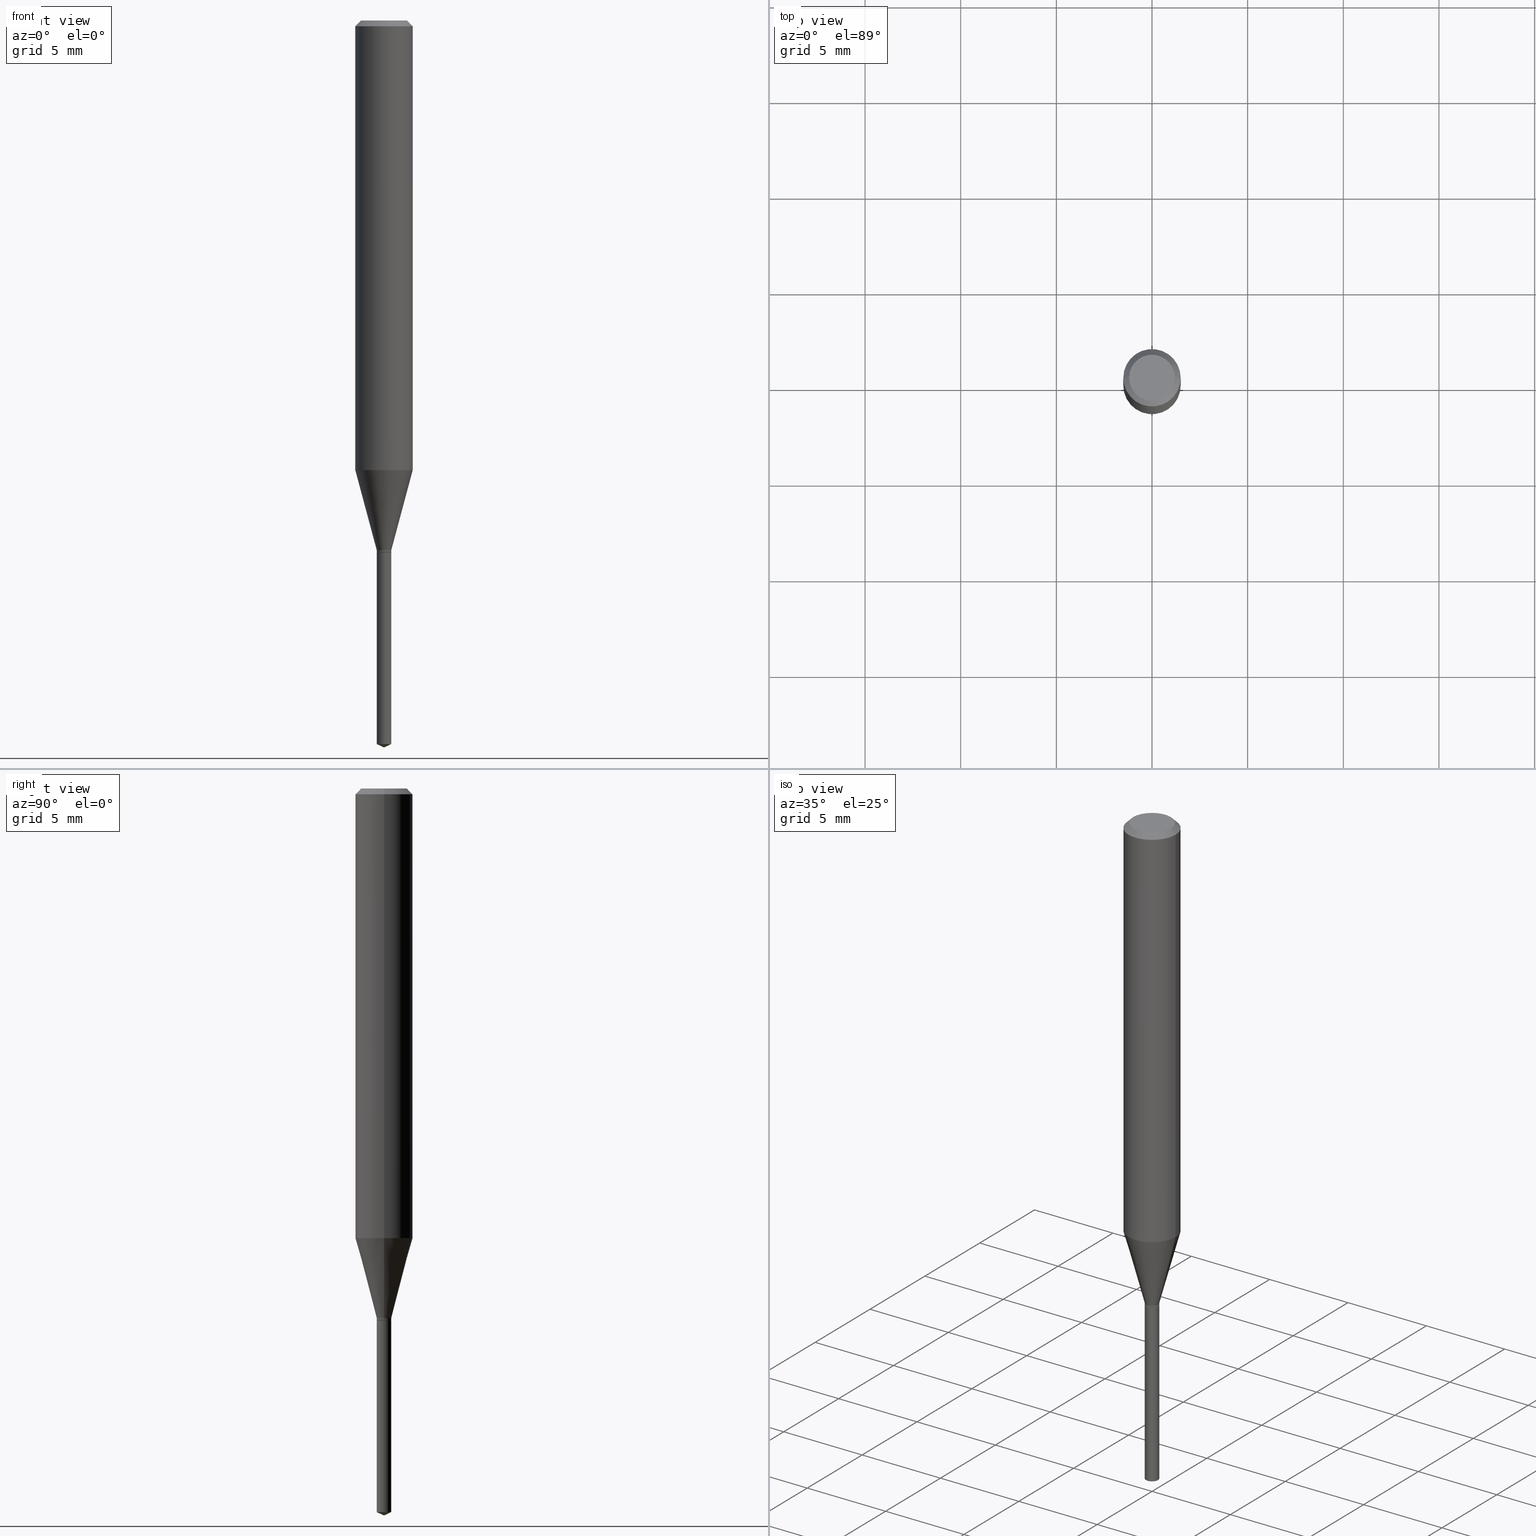
[diagram: canonical four-view strip — front | top / right | iso, engineering-drawing reading convention]
A machine part, canonical four-view strip (front | top / right | iso — engineering-drawing reading convention). The complete STEP part file that produces these views, byte-faithful:
ISO-10303-21;
HEADER;
FILE_DESCRIPTION (( 'STEP AP203' ),
    '1' );
FILE_NAME ('08118.STEP',
    '2024-04-24T12:05:46',
    ( '' ),
    ( '' ),
    'SwSTEP 2.0',
    'SolidWorks 2023',
    '' );
FILE_SCHEMA (( 'CONFIG_CONTROL_DESIGN' ));
ENDSEC;

DATA;
#1 = DIRECTION ( 'NONE',  ( 1.000000000000000000, -6.982962677686266711E-15, 0.000000000000000000 ) ) ;
#2 = ORIENTED_EDGE ( 'NONE', *, *, #183, .T. ) ;
#3 = APPROVAL_ROLE ( '' ) ;
#4 = CARTESIAN_POINT ( 'NONE',  ( 0.01494999999999994424, -3.910109951370437521E-15, -1.089999999999999858 ) ) ;
#5 = SHAPE_DEFINITION_REPRESENTATION ( #214, #108 ) ;
#6 = CIRCLE ( 'NONE', #334, 0.05904999999999999832 ) ;
#7 = AXIS2_PLACEMENT_3D ( 'NONE', #10, #202, #354 ) ;
#8 = APPROVAL_ROLE ( '' ) ;
#9 = ORIENTED_EDGE ( 'NONE', *, *, #475, .F. ) ;
#10 = CARTESIAN_POINT ( 'NONE',  ( 2.676565608369631794E-29, -3.821426325363822773E-15, -1.094499999999999806 ) ) ;
#11 = EDGE_LOOP ( 'NONE', ( #118, #412 ) ) ;
#12 = FACE_OUTER_BOUND ( 'NONE', #224, .T. ) ;
#13 = CARTESIAN_POINT ( 'NONE',  ( -0.05905000000000011628, -2.811499162287049151E-15, -0.9254165593862120343 ) ) ;
#14 = AXIS2_PLACEMENT_3D ( 'NONE', #360, #467, #46 ) ;
#15 = CC_DESIGN_APPROVAL ( #299, ( #155 ) ) ;
#16 = DIRECTION ( 'NONE',  ( -2.445468806185136597E-29, 3.491481338843145583E-15, 1.000000000000000000 ) ) ;
#17 = DIRECTION ( 'NONE',  ( -6.982962677686267499E-15, -1.000000000000000000, 3.520397390770298070E-15 ) ) ;
#18 = CARTESIAN_POINT ( 'NONE',  ( -9.261931828548885815E-28, 1.322367415117763772E-13, 37.87397874015748300 ) ) ;
#19 = CYLINDRICAL_SURFACE ( 'NONE', #134, 0.05905000000000006077 ) ;
#20 = VECTOR ( 'NONE', #221, 39.37007874015748854 ) ;
#21 = PLANE ( 'NONE',  #418 ) ;
#22 = CARTESIAN_POINT ( 'NONE',  ( -9.261931828548885815E-28, 1.322367415117763772E-13, 37.87397874015748300 ) ) ;
#23 = CARTESIAN_POINT ( 'NONE',  ( -0.01494999999999994424, 1.062261389961345816E-16, -7.353807959931056667E-31 ) ) ;
#24 = APPROVAL ( #198, 'UNSPECIFIED' ) ;
#25 = CARTESIAN_POINT ( 'NONE',  ( 2.665560998741798263E-29, -3.805714659339028452E-15, -1.089999999999999858 ) ) ;
#26 = VECTOR ( 'NONE', #403, 39.37007874015748143 ) ;
#27 = CARTESIAN_POINT ( 'NONE',  ( 2.888098660104663766E-31, -4.123439461173779647E-17, -0.01181000000000007044 ) ) ;
#28 = EDGE_CURVE ( 'NONE', #465, #241, #362, .T. ) ;
#29 = ORIENTED_EDGE ( 'NONE', *, *, #366, .F. ) ;
#30 = CARTESIAN_POINT ( 'NONE',  ( 2.263077328706156631E-29, -3.231074647753389433E-15, -0.9254165593862120343 ) ) ;
#31 = PERSON_AND_ORGANIZATION ( #258, #462 ) ;
#32 = AXIS2_PLACEMENT_3D ( 'NONE', #220, #307, #303 ) ;
#33 = AXIS2_PLACEMENT_3D ( 'NONE', #71, #230, #271 ) ;
#34 = CARTESIAN_POINT ( 'NONE',  ( 3.658671642415649744E-29, -5.223597202677443246E-15, -1.496099999999999985 ) ) ;
#35 = ORIENTED_EDGE ( 'NONE', *, *, #67, .T. ) ;
#36 = PERSON_AND_ORGANIZATION_ROLE ( 'design_owner' ) ;
#37 = VERTEX_POINT ( 'NONE', #474 ) ;
#38 = CC_DESIGN_DATE_AND_TIME_ASSIGNMENT ( #110, #73, ( #262 ) ) ;
#39 = COORDINATED_UNIVERSAL_TIME_OFFSET ( 5, 0, .BEHIND. ) ;
#40 = MANIFOLD_SOLID_BREP ( 'Body-Move/Copy2[2]', #44 ) ;
#41 = VERTEX_POINT ( 'NONE', #13 ) ;
#42 = VERTEX_POINT ( 'NONE', #398 ) ;
#43 = APPLICATION_PROTOCOL_DEFINITION ( 'international standard', 'config_control_design', 1994, #162 ) ;
#44 = CLOSED_SHELL ( 'NONE', ( #342, #244, #236, #227, #392, #89, #257, #157, #316, #248, #103, #301 ) ) ;
#45 = ORIENTED_EDGE ( 'NONE', *, *, #76, .T. ) ;
#46 = DIRECTION ( 'NONE',  ( -6.982962677686266711E-15, -1.000000000000000000, 0.000000000000000000 ) ) ;
#47 = PRODUCT_DEFINITION ( 'UNKNOWN', '', #155, #99 ) ;
#48 = MANIFOLD_SOLID_BREP ( 'Body-Move/Copy2[1]', #374 ) ;
#49 = ORIENTED_EDGE ( 'NONE', *, *, #290, .F. ) ;
#50 = ORIENTED_EDGE ( 'NONE', *, *, #295, .F. ) ;
#51 = ORIENTED_EDGE ( 'NONE', *, *, #351, .T. ) ;
#52 = ORIENTED_EDGE ( 'NONE', *, *, #443, .T. ) ;
#53 = CONICAL_SURFACE ( 'NONE', #146, 0.01445000000000000104, 0.7853981633973586840 ) ;
#54 = EDGE_LOOP ( 'NONE', ( #136, #186, #318, #77 ) ) ;
#55 = EDGE_CURVE ( 'NONE', #60, #322, #324, .T. ) ;
#56 = DIRECTION ( 'NONE',  ( 2.438088387897960049E-29, -3.491481338843145188E-15, -1.000000000000000000 ) ) ;
#57 = DIRECTION ( 'NONE',  ( 1.000000000000000000, -6.982962677686266711E-15, 4.876176775795935793E-29 ) ) ;
#58 = ORIENTED_EDGE ( 'NONE', *, *, #426, .T. ) ;
#59 = ORIENTED_EDGE ( 'NONE', *, *, #355, .F. ) ;
#60 = VERTEX_POINT ( 'NONE', #361 ) ;
#61 = VECTOR ( 'NONE', #175, 39.37007874015748143 ) ;
#62 = CARTESIAN_POINT ( 'NONE',  ( 0.000000000000000000, 0.000000000000000000, 0.000000000000000000 ) ) ;
#63 = CARTESIAN_POINT ( 'NONE',  ( -0.01494999999999994424, -3.699488520342893341E-15, -1.089999999999999858 ) ) ;
#64 = AXIS2_PLACEMENT_3D ( 'NONE', #151, #372, #484 ) ;
#65 = FACE_OUTER_BOUND ( 'NONE', #377, .T. ) ;
#66 = DIRECTION ( 'NONE',  ( -6.982962677686266711E-15, -1.000000000000000000, 0.000000000000000000 ) ) ;
#67 = EDGE_CURVE ( 'NONE', #465, #348, #208, .T. ) ;
#68 = ORIENTED_EDGE ( 'NONE', *, *, #255, .T. ) ;
#69 = DIRECTION ( 'NONE',  ( -2.445468806185136597E-29, 3.491481338843145583E-15, 1.000000000000000000 ) ) ;
#70 = ORIENTED_EDGE ( 'NONE', *, *, #76, .F. ) ;
#71 = CARTESIAN_POINT ( 'NONE',  ( 0.000000000000000000, 0.000000000000000000, 0.000000000000000000 ) ) ;
#72 = AXIS2_PLACEMENT_3D ( 'NONE', #289, #445, #133 ) ;
#73 = DATE_TIME_ROLE ( 'classification_date' ) ;
#74 = CIRCLE ( 'NONE', #293, 0.04724000000000000421 ) ;
#75 = VERTEX_POINT ( 'NONE', #472 ) ;
#76 = EDGE_CURVE ( 'NONE', #322, #237, #466, .T. ) ;
#77 = ORIENTED_EDGE ( 'NONE', *, *, #160, .F. ) ;
#78 = COORDINATED_UNIVERSAL_TIME_OFFSET ( 5, 0, .BEHIND. ) ;
#79 = VERTEX_POINT ( 'NONE', #473 ) ;
#80 = DATE_AND_TIME ( #279, #147 ) ;
#81 = EDGE_CURVE ( 'NONE', #453, #75, #6, .T. ) ;
#82 = AXIS2_PLACEMENT_3D ( 'NONE', #145, #305, #66 ) ;
#83 = EDGE_LOOP ( 'NONE', ( #448, #51, #381 ) ) ;
#84 = AXIS2_PLACEMENT_3D ( 'NONE', #30, #184, #1 ) ;
#85 = DIRECTION ( 'NONE',  ( 1.000000000000000000, -6.982962677686266711E-15, 4.876185090822587894E-29 ) ) ;
#86 = ORIENTED_EDGE ( 'NONE', *, *, #443, .F. ) ;
#87 = DIRECTION ( 'NONE',  ( 1.000000000000000000, -6.982962677686266711E-15, 4.876176775795935793E-29 ) ) ;
#88 = CARTESIAN_POINT ( 'NONE',  ( 1.062261389961617356E-16, 0.01494999999999617815, -1.094499999999999806 ) ) ;
#89 = ADVANCED_FACE ( 'NONE', ( #252 ), #211, .T. ) ;
#90 = PLANE ( 'NONE',  #402 ) ;
#91 = LINE ( 'NONE', #88, #178 ) ;
#92 = AXIS2_PLACEMENT_3D ( 'NONE', #25, #482, #265 ) ;
#93 = ORIENTED_EDGE ( 'NONE', *, *, #195, .T. ) ;
#94 = CARTESIAN_POINT ( 'NONE',  ( -0.05904999999999999832, 3.711095515056362547E-16, -0.01181000000000007044 ) ) ;
#95 = FACE_OUTER_BOUND ( 'NONE', #296, .T. ) ;
#96 = DIRECTION ( 'NONE',  ( 1.000000000000000000, -6.982962677686271444E-15, 0.000000000000000000 ) ) ;
#97 = PRODUCT_RELATED_PRODUCT_CATEGORY ( 'detail', '', ( #182 ) ) ;
#98 = CARTESIAN_POINT ( 'NONE',  ( 1.062261389961713869E-16, 0.01494999999999480425, -1.489128700510583103 ) ) ;
#99 = DESIGN_CONTEXT ( 'detailed design', #162, 'design' ) ;
#100 = CIRCLE ( 'NONE', #461, 0.01494999999999999975 ) ;
#101 = DIRECTION ( 'NONE',  ( 1.000000000000000000, -6.982962677686271444E-15, 0.000000000000000000 ) ) ;
#102 = UNCERTAINTY_MEASURE_WITH_UNIT (LENGTH_MEASURE( 1.000000000000000082E-05 ), #338, 'distance_accuracy_value', 'NONE');
#103 = ADVANCED_FACE ( 'NONE', ( #249 ), #21, .F. ) ;
#104 = ADVANCED_FACE ( 'NONE', ( #357 ), #197, .T. ) ;
#105 = FACE_OUTER_BOUND ( 'NONE', #125, .T. ) ;
#106 = ORIENTED_EDGE ( 'NONE', *, *, #67, .F. ) ;
#107 = ORIENTED_EDGE ( 'NONE', *, *, #414, .T. ) ;
#108 = ADVANCED_BREP_SHAPE_REPRESENTATION ( '08118', ( #48, #40, #33 ), #243 ) ;
#109 = ORIENTED_EDGE ( 'NONE', *, *, #195, .F. ) ;
#110 = DATE_AND_TIME ( #456, #411 ) ;
#111 = ADVANCED_FACE ( 'NONE', ( #95 ), #131, .T. ) ;
#112 = EDGE_LOOP ( 'NONE', ( #191, #304, #50 ) ) ;
#113 = ORIENTED_EDGE ( 'NONE', *, *, #55, .T. ) ;
#114 = AXIS2_PLACEMENT_3D ( 'NONE', #217, #294, #477 ) ;
#115 = APPROVAL_STATUS ( 'not_yet_approved' ) ;
#116 = AXIS2_PLACEMENT_3D ( 'NONE', #285, #432, #87 ) ;
#117 = LOCAL_TIME ( 8, 5, 46.00000000000000000, #159 ) ;
#118 = ORIENTED_EDGE ( 'NONE', *, *, #168, .T. ) ;
#119 = PERSON_AND_ORGANIZATION ( #258, #462 ) ;
#120 = ADVANCED_FACE ( 'NONE', ( #353 ), #287, .T. ) ;
#121 = ORIENTED_EDGE ( 'NONE', *, *, #426, .F. ) ;
#122 = DATE_AND_TIME ( #240, #209 ) ;
#123 = EDGE_LOOP ( 'NONE', ( #459, #107, #431, #278 ) ) ;
#124 = AXIS2_PLACEMENT_3D ( 'NONE', #18, #325, #17 ) ;
#125 = EDGE_LOOP ( 'NONE', ( #275, #306, #113, #424 ) ) ;
#126 = CIRCLE ( 'NONE', #207, 0.01494999999999994771 ) ;
#127 = CC_DESIGN_SECURITY_CLASSIFICATION ( #262, ( #155 ) ) ;
#128 = DIRECTION ( 'NONE',  ( 1.000000000000000000, -6.982962677686271444E-15, 0.000000000000000000 ) ) ;
#129 = ORIENTED_EDGE ( 'NONE', *, *, #137, .T. ) ;
#130 = CC_DESIGN_PERSON_AND_ORGANIZATION_ASSIGNMENT ( #463, #36, ( #182 ) ) ;
#131 = CYLINDRICAL_SURFACE ( 'NONE', #72, 0.01494999999999999975 ) ;
#132 = CARTESIAN_POINT ( 'NONE',  ( -0.01494999999999994944, -3.706471483020580144E-15, -1.093999999999999861 ) ) ;
#133 = DIRECTION ( 'NONE',  ( -6.982962677686266711E-15, -1.000000000000000000, 0.000000000000000000 ) ) ;
#134 = AXIS2_PLACEMENT_3D ( 'NONE', #62, #488, #483 ) ;
#135 = VECTOR ( 'NONE', #246, 39.37007874015748143 ) ;
#136 = ORIENTED_EDGE ( 'NONE', *, *, #376, .F. ) ;
#137 = EDGE_CURVE ( 'NONE', #270, #380, #91, .T. ) ;
#138 = EDGE_CURVE ( 'NONE', #201, #237, #174, .T. ) ;
#139 = DIRECTION ( 'NONE',  ( 2.445468806185136597E-29, -3.491481338843145583E-15, -1.000000000000000000 ) ) ;
#140 = DIRECTION ( 'NONE',  ( -0.7071067811864841790, 7.493145998870125391E-15, 0.7071067811866108554 ) ) ;
#141 = AXIS2_PLACEMENT_3D ( 'NONE', #333, #149, #272 ) ;
#142 = CARTESIAN_POINT ( 'NONE',  ( 2.665560998741798263E-29, -3.805714659339028452E-15, -1.089999999999999858 ) ) ;
#143 = CARTESIAN_POINT ( 'NONE',  ( -0.01445000000000000104, -3.716103672872377359E-15, -1.094499999999999806 ) ) ;
#144 = LINE ( 'NONE', #192, #135 ) ;
#145 = CARTESIAN_POINT ( 'NONE',  ( 3.641614592596127873E-29, -5.199269641379409122E-15, -1.489128700510583103 ) ) ;
#146 = AXIS2_PLACEMENT_3D ( 'NONE', #485, #266, #407 ) ;
#147 = LOCAL_TIME ( 8, 5, 46.00000000000000000, #234 ) ;
#148 = DIRECTION ( 'NONE',  ( 1.000000000000000000, -6.982962677686266711E-15, 0.000000000000000000 ) ) ;
#149 = DIRECTION ( 'NONE',  ( -2.445468806185136597E-29, 3.491481338843145583E-15, 1.000000000000000000 ) ) ;
#150 = ORIENTED_EDGE ( 'NONE', *, *, #55, .F. ) ;
#151 = CARTESIAN_POINT ( 'NONE',  ( 2.676565608369631794E-29, -3.821426325363822773E-15, -1.094499999999999806 ) ) ;
#152 = DATE_AND_TIME ( #314, #117 ) ;
#153 = DIRECTION ( 'NONE',  ( -2.445468806185136597E-29, 3.491481338843145583E-15, 1.000000000000000000 ) ) ;
#154 = COORDINATED_UNIVERSAL_TIME_OFFSET ( 5, 0, .BEHIND. ) ;
#155 = PRODUCT_DEFINITION_FORMATION_WITH_SPECIFIED_SOURCE ( 'ANY', '', #182, .NOT_KNOWN. ) ;
#156 = ORIENTED_EDGE ( 'NONE', *, *, #28, .T. ) ;
#157 = ADVANCED_FACE ( 'NONE', ( #256 ), #19, .T. ) ;
#158 = EDGE_LOOP ( 'NONE', ( #385, #284 ) ) ;
#159 = COORDINATED_UNIVERSAL_TIME_OFFSET ( 5, 0, .BEHIND. ) ;
#160 = EDGE_CURVE ( 'NONE', #75, #453, #346, .T. ) ;
#161 = EDGE_LOOP ( 'NONE', ( #371, #93, #427, #239 ) ) ;
#162 = APPLICATION_CONTEXT ( 'configuration controlled 3d designs of mechanical parts and assemblies' ) ;
#163 = LINE ( 'NONE', #245, #489 ) ;
#164 = DIRECTION ( 'NONE',  ( -2.445468806185136597E-29, 3.491481338843145583E-15, 1.000000000000000000 ) ) ;
#165 = CONICAL_SURFACE ( 'NONE', #419, 84.42940631927807260, 1.134464013796332882 ) ;
#166 = DIRECTION ( 'NONE',  ( -2.445468806185136597E-29, 3.491481338843145583E-15, 1.000000000000000000 ) ) ;
#167 = EDGE_CURVE ( 'NONE', #270, #422, #382, .T. ) ;
#168 = EDGE_CURVE ( 'NONE', #79, #380, #260, .T. ) ;
#169 = ORIENTED_EDGE ( 'NONE', *, *, #295, .T. ) ;
#170 = DIRECTION ( 'NONE',  ( 1.000000000000000000, -6.982962677686266711E-15, 0.000000000000000000 ) ) ;
#171 = CARTESIAN_POINT ( 'NONE',  ( 0.000000000000000000, 0.000000000000000000, 0.000000000000000000 ) ) ;
#172 = EDGE_LOOP ( 'NONE', ( #86, #29 ) ) ;
#173 = CC_DESIGN_PERSON_AND_ORGANIZATION_ASSIGNMENT ( #281, #413, ( #155 ) ) ;
#174 = LINE ( 'NONE', #388, #452 ) ;
#175 = DIRECTION ( 'NONE',  ( -2.445468806185136877E-29, 3.491481338843145188E-15, 1.000000000000000000 ) ) ;
#176 = LINE ( 'NONE', #332, #319 ) ;
#177 = EDGE_CURVE ( 'NONE', #241, #465, #261, .T. ) ;
#178 = VECTOR ( 'NONE', #213, 39.37007874015748143 ) ;
#179 = AXIS2_PLACEMENT_3D ( 'NONE', #142, #478, #101 ) ;
#180 = CARTESIAN_POINT ( 'NONE',  ( 3.641614592596127873E-29, -5.199269641379409122E-15, -1.489128700510583103 ) ) ;
#181 = CARTESIAN_POINT ( 'NONE',  ( 0.05904999999999999832, -4.535783407291118600E-16, -0.01181000000000007044 ) ) ;
#182 = PRODUCT ( '08118', '08118', '', ( #349 ) ) ;
#183 = EDGE_CURVE ( 'NONE', #237, #241, #263, .T. ) ;
#184 = DIRECTION ( 'NONE',  ( -2.445468806185136597E-29, 3.491481338843145583E-15, 1.000000000000000000 ) ) ;
#185 = AXIS2_PLACEMENT_3D ( 'NONE', #269, #228, #420 ) ;
#186 = ORIENTED_EDGE ( 'NONE', *, *, #331, .T. ) ;
#187 = APPLICATION_PROTOCOL_DEFINITION ( 'international standard', 'config_control_design', 1994, #397 ) ;
#188 = CC_DESIGN_APPROVAL ( #24, ( #47 ) ) ;
#189 = LENGTH_MEASURE_WITH_UNIT ( LENGTH_MEASURE( 0.02539999999999999897 ), #375 );
#190 = PERSON_AND_ORGANIZATION_ROLE ( 'creator' ) ;
#191 = ORIENTED_EDGE ( 'NONE', *, *, #351, .F. ) ;
#192 = CARTESIAN_POINT ( 'NONE',  ( -1.043952920313829132E-16, -0.01495000000000382308, -1.094499999999999806 ) ) ;
#193 = ORIENTED_EDGE ( 'NONE', *, *, #205, .F. ) ;
#194 = APPROVAL_DATE_TIME ( #80, #24 ) ;
#195 = EDGE_CURVE ( 'NONE', #37, #453, #176, .T. ) ;
#196 = ORIENTED_EDGE ( 'NONE', *, *, #167, .T. ) ;
#197 = CONICAL_SURFACE ( 'NONE', #124, 84.42940631927807260, 1.134464013796332882 ) ;
#198 = APPROVAL_STATUS ( 'not_yet_approved' ) ;
#199 = CC_DESIGN_PERSON_AND_ORGANIZATION_ASSIGNMENT ( #31, #417, ( #262 ) ) ;
#200 = VECTOR ( 'NONE', #212, 39.37007874015748854 ) ;
#201 = VERTEX_POINT ( 'NONE', #143 ) ;
#202 = DIRECTION ( 'NONE',  ( -2.445468806185136597E-29, 3.491481338843145583E-15, 1.000000000000000000 ) ) ;
#203 = CARTESIAN_POINT ( 'NONE',  ( 1.062261389961714608E-16, 0.01494999999999617989, -1.094499999999999806 ) ) ;
#204 = DIRECTION ( 'NONE',  ( 0.7071067811864841790, -2.468850131081593629E-15, 0.7071067811866108554 ) ) ;
#205 = EDGE_CURVE ( 'NONE', #241, #41, #406, .T. ) ;
#206 = CARTESIAN_POINT ( 'NONE',  ( -0.01494999999999994424, -3.706471483020580144E-15, -1.089999999999999858 ) ) ;
#207 = AXIS2_PLACEMENT_3D ( 'NONE', #454, #317, #415 ) ;
#208 = LINE ( 'NONE', #321, #300 ) ;
#209 = LOCAL_TIME ( 8, 5, 46.00000000000000000, #78 ) ;
#210 = DIRECTION ( 'NONE',  ( -1.000000000000000000, 6.982962677686265922E-15, -4.876176775795935793E-29 ) ) ;
#211 = CYLINDRICAL_SURFACE ( 'NONE', #291, 0.01494999999999994424 ) ;
#212 = DIRECTION ( 'NONE',  ( -6.328713451373423810E-15, -0.9063077870366562649, 0.4226182617406855635 ) ) ;
#213 = DIRECTION ( 'NONE',  ( -2.445460715294871217E-29, 3.491492925458510144E-15, 1.000000000000000000 ) ) ;
#214 = PRODUCT_DEFINITION_SHAPE ( 'NONE', 'NONE',  #47 ) ;
#215 =( NAMED_UNIT ( * ) SI_UNIT ( $, .STERADIAN. ) SOLID_ANGLE_UNIT ( ) );
#216 = CC_DESIGN_DATE_AND_TIME_ASSIGNMENT ( #122, #310, ( #47 ) ) ;
#217 = CARTESIAN_POINT ( 'NONE',  ( 2.676565608369631794E-29, -3.821426325363822773E-15, -1.094499999999999806 ) ) ;
#218 = AXIS2_PLACEMENT_3D ( 'NONE', #232, #153, #396 ) ;
#219 = CARTESIAN_POINT ( 'NONE',  ( 0.01494999999999994771, -3.924075876725810339E-15, -1.093999999999999861 ) ) ;
#220 = CARTESIAN_POINT ( 'NONE',  ( 2.676565608369631794E-29, -3.821426325363822773E-15, -1.094499999999999806 ) ) ;
#221 = DIRECTION ( 'NONE',  ( -0.2588190451025212391, 5.211531920934549464E-15, 0.9659258262890679791 ) ) ;
#222 = CIRCLE ( 'NONE', #84, 0.05905000000000011628 ) ;
#223 = APPROVAL_PERSON_ORGANIZATION ( #341, #299, #3 ) ;
#224 = EDGE_LOOP ( 'NONE', ( #280, #386, #277, #49 ) ) ;
#225 = CARTESIAN_POINT ( 'NONE',  ( 0.05905000000000006077, -4.123439461173744764E-16, 2.879382386107503023E-30 ) ) ;
#226 = CARTESIAN_POINT ( 'NONE',  ( 2.888098660104663766E-31, -4.123439461173779647E-17, -0.01181000000000007044 ) ) ;
#227 = ADVANCED_FACE ( 'NONE', ( #368 ), #430, .T. ) ;
#228 = DIRECTION ( 'NONE',  ( -2.445468806185136597E-29, 3.491481338843145583E-15, 1.000000000000000000 ) ) ;
#229 = EDGE_LOOP ( 'NONE', ( #156, #455, #9, #106 ) ) ;
#230 = DIRECTION ( 'NONE',  ( 0.000000000000000000, 0.000000000000000000, 1.000000000000000000 ) ) ;
#231 = AXIS2_PLACEMENT_3D ( 'NONE', #470, #444, #96 ) ;
#232 = CARTESIAN_POINT ( 'NONE',  ( 2.676565608369631794E-29, -3.821426325363822773E-15, -1.094499999999999806 ) ) ;
#233 = AXIS2_PLACEMENT_3D ( 'NONE', #171, #16, #389 ) ;
#234 = COORDINATED_UNIVERSAL_TIME_OFFSET ( 5, 0, .BEHIND. ) ;
#235 = PLANE ( 'NONE',  #64 ) ;
#236 = ADVANCED_FACE ( 'NONE', ( #12 ), #286, .T. ) ;
#237 = VERTEX_POINT ( 'NONE', #132 ) ;
#238 = APPROVAL_STATUS ( 'not_yet_approved' ) ;
#239 = ORIENTED_EDGE ( 'NONE', *, *, #255, .F. ) ;
#240 = CALENDAR_DATE ( 2024, 24, 4 ) ;
#241 = VERTEX_POINT ( 'NONE', #206 ) ;
#242 = CARTESIAN_POINT ( 'NONE',  ( 3.658653776152657051E-29, -5.223622565778476142E-15, -1.496099999999999985 ) ) ;
#243 =( GEOMETRIC_REPRESENTATION_CONTEXT ( 3 ) GLOBAL_UNCERTAINTY_ASSIGNED_CONTEXT ( ( #102 ) ) GLOBAL_UNIT_ASSIGNED_CONTEXT ( ( #338, #458, #215 ) ) REPRESENTATION_CONTEXT ( 'NONE', 'WORKASPACE' ) );
#244 = ADVANCED_FACE ( 'NONE', ( #435 ), #326, .T. ) ;
#245 = CARTESIAN_POINT ( 'NONE',  ( -0.05905000000000006077, 4.195754854663395916E-16, -2.904631170795524694E-30 ) ) ;
#246 = DIRECTION ( 'NONE',  ( -2.445460715294871217E-29, 3.491492925458510144E-15, 1.000000000000000000 ) ) ;
#247 = ORIENTED_EDGE ( 'NONE', *, *, #160, .T. ) ;
#248 = ADVANCED_FACE ( 'NONE', ( #323 ), #90, .F. ) ;
#249 = FACE_OUTER_BOUND ( 'NONE', #172, .T. ) ;
#250 = DIRECTION ( 'NONE',  ( -2.445468806185136877E-29, 3.491481338843145188E-15, 1.000000000000000000 ) ) ;
#251 = CIRCLE ( 'NONE', #185, 0.01445000000000000104 ) ;
#252 = FACE_OUTER_BOUND ( 'NONE', #123, .T. ) ;
#253 = LOCAL_TIME ( 8, 5, 46.00000000000000000, #39 ) ;
#254 = ORIENTED_EDGE ( 'NONE', *, *, #28, .F. ) ;
#255 = EDGE_CURVE ( 'NONE', #42, #75, #441, .T. ) ;
#256 = FACE_OUTER_BOUND ( 'NONE', #54, .T. ) ;
#257 = ADVANCED_FACE ( 'NONE', ( #480 ), #312, .T. ) ;
#258 = PERSON ( 'UNSPECIFIED', 'UNSPECIFIED', 'UNSPECIFIED', ('UNSPECIFIED'), ('UNSPECIFIED'), ('UNSPECIFIED') ) ;
#259 = CARTESIAN_POINT ( 'NONE',  ( 2.888098660104663766E-31, -4.123439461173779647E-17, -0.01181000000000007044 ) ) ;
#260 = CIRCLE ( 'NONE', #32, 0.01494999999999999975 ) ;
#261 = CIRCLE ( 'NONE', #92, 0.01494999999999994424 ) ;
#262 = SECURITY_CLASSIFICATION ( '', '', #428 ) ;
#263 = LINE ( 'NONE', #23, #26 ) ;
#264 = DIRECTION ( 'NONE',  ( -2.445468806185136877E-29, 3.491481338843145188E-15, 1.000000000000000000 ) ) ;
#265 = DIRECTION ( 'NONE',  ( 1.000000000000000000, -6.982962677686271444E-15, 0.000000000000000000 ) ) ;
#266 = DIRECTION ( 'NONE',  ( -2.445468806185136597E-29, 3.491481338843145583E-15, 1.000000000000000000 ) ) ;
#267 = VECTOR ( 'NONE', #490, 39.37007874015748854 ) ;
#268 = DIRECTION ( 'NONE',  ( -6.982962677686267499E-15, -1.000000000000000000, 3.520397390770298070E-15 ) ) ;
#269 = CARTESIAN_POINT ( 'NONE',  ( 2.676565608369631794E-29, -3.821426325363822773E-15, -1.094499999999999806 ) ) ;
#270 = VERTEX_POINT ( 'NONE', #98 ) ;
#271 = DIRECTION ( 'NONE',  ( 1.000000000000000000, 0.000000000000000000, 0.000000000000000000 ) ) ;
#272 = DIRECTION ( 'NONE',  ( 1.000000000000000000, -6.982962677686266711E-15, 4.876185090822587894E-29 ) ) ;
#273 = EDGE_CURVE ( 'NONE', #322, #465, #370, .T. ) ;
#274 = CONICAL_SURFACE ( 'NONE', #363, 0.05904999999999999832, 0.7853981633974452814 ) ;
#275 = ORIENTED_EDGE ( 'NONE', *, *, #138, .F. ) ;
#276 = APPROVAL_ROLE ( '' ) ;
#277 = ORIENTED_EDGE ( 'NONE', *, *, #81, .F. ) ;
#278 = ORIENTED_EDGE ( 'NONE', *, *, #177, .F. ) ;
#279 = CALENDAR_DATE ( 2024, 24, 4 ) ;
#280 = ORIENTED_EDGE ( 'NONE', *, *, #475, .T. ) ;
#281 = PERSON_AND_ORGANIZATION ( #258, #462 ) ;
#282 = CIRCLE ( 'NONE', #141, 0.04724000000000000421 ) ;
#283 = DIRECTION ( 'NONE',  ( 1.000000000000000000, -6.982962677686266711E-15, 0.000000000000000000 ) ) ;
#284 = ORIENTED_EDGE ( 'NONE', *, *, #404, .T. ) ;
#285 = CARTESIAN_POINT ( 'NONE',  ( 0.000000000000000000, 0.000000000000000000, 0.000000000000000000 ) ) ;
#286 = CYLINDRICAL_SURFACE ( 'NONE', #233, 0.05905000000000006077 ) ;
#287 = CYLINDRICAL_SURFACE ( 'NONE', #114, 0.01494999999999999975 ) ;
#288 = DIRECTION ( 'NONE',  ( -2.445468806185136597E-29, 3.491481338843145583E-15, 1.000000000000000000 ) ) ;
#289 = CARTESIAN_POINT ( 'NONE',  ( 2.676565608369631794E-29, -3.821426325363822773E-15, -1.094499999999999806 ) ) ;
#290 = EDGE_CURVE ( 'NONE', #348, #453, #405, .T. ) ;
#291 = AXIS2_PLACEMENT_3D ( 'NONE', #400, #442, #57 ) ;
#292 = CARTESIAN_POINT ( 'NONE',  ( 2.888098660104663766E-31, -4.123439461173779647E-17, -0.01181000000000007044 ) ) ;
#293 = AXIS2_PLACEMENT_3D ( 'NONE', #391, #288, #85 ) ;
#294 = DIRECTION ( 'NONE',  ( -2.445460715294871217E-29, 3.491492925458510144E-15, 1.000000000000000000 ) ) ;
#295 = EDGE_CURVE ( 'NONE', #422, #270, #100, .T. ) ;
#296 = EDGE_LOOP ( 'NONE', ( #378, #196, #58, #59 ) ) ;
#297 = DIMENSIONAL_EXPONENTS ( 1.000000000000000000, 0.000000000000000000, 0.000000000000000000, 0.000000000000000000, 0.000000000000000000, 0.000000000000000000, 0.000000000000000000 ) ;
#298 = CARTESIAN_POINT ( 'NONE',  ( 2.675342873966538993E-29, -3.819680584694400481E-15, -1.093999999999999861 ) ) ;
#299 = APPROVAL ( #238, 'UNSPECIFIED' ) ;
#300 = VECTOR ( 'NONE', #364, 39.37007874015748854 ) ;
#301 = ADVANCED_FACE ( 'NONE', ( #105 ), #53, .T. ) ;
#302 = CARTESIAN_POINT ( 'NONE',  ( 0.01494999999999994424, -1.043952920314093030E-16, 7.289884279814897161E-31 ) ) ;
#303 = DIRECTION ( 'NONE',  ( -6.982962677686266711E-15, -1.000000000000000000, 0.000000000000000000 ) ) ;
#304 = ORIENTED_EDGE ( 'NONE', *, *, #486, .T. ) ;
#305 = DIRECTION ( 'NONE',  ( -2.445460715294871217E-29, 3.491492925458510144E-15, 1.000000000000000000 ) ) ;
#306 = ORIENTED_EDGE ( 'NONE', *, *, #366, .T. ) ;
#307 = DIRECTION ( 'NONE',  ( -2.445460715294871217E-29, 3.491492925458510144E-15, 1.000000000000000000 ) ) ;
#308 = PERSON_AND_ORGANIZATION_ROLE ( 'creator' ) ;
#309 = ORIENTED_EDGE ( 'NONE', *, *, #177, .T. ) ;
#310 = DATE_TIME_ROLE ( 'creation_date' ) ;
#311 = EDGE_LOOP ( 'NONE', ( #169, #129, #315, #121 ) ) ;
#312 = CONICAL_SURFACE ( 'NONE', #179, 0.01494999999999994424, 0.2617993877991499629 ) ;
#313 = APPROVAL_DATE_TIME ( #152, #299 ) ;
#314 = CALENDAR_DATE ( 2024, 24, 4 ) ;
#315 = ORIENTED_EDGE ( 'NONE', *, *, #168, .F. ) ;
#316 = ADVANCED_FACE ( 'NONE', ( #65 ), #274, .T. ) ;
#317 = DIRECTION ( 'NONE',  ( -2.445468806185136597E-29, 3.491481338843145583E-15, 1.000000000000000000 ) ) ;
#318 = ORIENTED_EDGE ( 'NONE', *, *, #290, .T. ) ;
#319 = VECTOR ( 'NONE', #446, 39.37007874015748143 ) ;
#320 = CIRCLE ( 'NONE', #14, 0.01494999999999999975 ) ;
#321 = CARTESIAN_POINT ( 'NONE',  ( 0.01494999999999994424, -3.910109951370437521E-15, -1.089999999999999858 ) ) ;
#322 = VERTEX_POINT ( 'NONE', #219 ) ;
#323 = FACE_OUTER_BOUND ( 'NONE', #158, .T. ) ;
#324 = LINE ( 'NONE', #390, #367 ) ;
#325 = DIRECTION ( 'NONE',  ( -2.445460715294871217E-29, 3.491492925458510144E-15, 1.000000000000000000 ) ) ;
#326 = CONICAL_SURFACE ( 'NONE', #439, 0.05904999999999999832, 0.7853981633974452814 ) ;
#327 = DIRECTION ( 'NONE',  ( -2.445468806185136597E-29, 3.491481338843145583E-15, 1.000000000000000000 ) ) ;
#328 = ADVANCED_FACE ( 'NONE', ( #365 ), #165, .T. ) ;
#329 = DIRECTION ( 'NONE',  ( -0.7071067811865453523, 2.468850131082234184E-15, -0.7071067811865496822 ) ) ;
#330 = DIRECTION ( 'NONE',  ( 1.000000000000000000, -6.982962677686265922E-15, 4.876176775795935793E-29 ) ) ;
#331 = EDGE_CURVE ( 'NONE', #41, #348, #222, .T. ) ;
#332 = CARTESIAN_POINT ( 'NONE',  ( 0.05904999999999999832, -4.463468013801466955E-16, -0.01181000000000007044 ) ) ;
#333 = CARTESIAN_POINT ( 'NONE',  ( 8.265746106709734507E-48, -1.180129479067563789E-33, -3.380025165646692144E-19 ) ) ;
#334 = AXIS2_PLACEMENT_3D ( 'NONE', #259, #166, #170 ) ;
#335 = CARTESIAN_POINT ( 'NONE',  ( 2.263077328706156631E-29, -3.231074647753389433E-15, -0.9254165593862120343 ) ) ;
#336 = VECTOR ( 'NONE', #329, 39.37007874015748143 ) ;
#337 = FACE_OUTER_BOUND ( 'NONE', #395, .T. ) ;
#338 =( CONVERSION_BASED_UNIT ( 'INCH', #189 ) LENGTH_UNIT ( ) NAMED_UNIT ( #297 ) );
#339 = CC_DESIGN_PERSON_AND_ORGANIZATION_ASSIGNMENT ( #464, #190, ( #47 ) ) ;
#340 = EDGE_LOOP ( 'NONE', ( #45, #2, #254, #425 ) ) ;
#341 = PERSON_AND_ORGANIZATION ( #258, #462 ) ;
#342 = ADVANCED_FACE ( 'NONE', ( #337 ), #479, .T. ) ;
#343 = CARTESIAN_POINT ( 'NONE',  ( 3.658653776152655930E-29, -5.223622565778476142E-15, -1.496099999999999985 ) ) ;
#344 = APPROVAL_DATE_TIME ( #379, #384 ) ;
#345 = EDGE_LOOP ( 'NONE', ( #193, #309, #35, #350 ) ) ;
#346 = CIRCLE ( 'NONE', #408, 0.05904999999999999832 ) ;
#347 = CIRCLE ( 'NONE', #410, 0.05905000000000011628 ) ;
#348 = VERTEX_POINT ( 'NONE', #471 ) ;
#349 = MECHANICAL_CONTEXT ( 'NONE', #397, 'mechanical' ) ;
#350 = ORIENTED_EDGE ( 'NONE', *, *, #331, .F. ) ;
#351 = EDGE_CURVE ( 'NONE', #416, #422, #429, .T. ) ;
#352 = FACE_OUTER_BOUND ( 'NONE', #340, .T. ) ;
#353 = FACE_OUTER_BOUND ( 'NONE', #311, .T. ) ;
#354 = DIRECTION ( 'NONE',  ( 1.000000000000000000, -6.982962677686275388E-15, 0.000000000000000000 ) ) ;
#355 = EDGE_CURVE ( 'NONE', #380, #79, #320, .T. ) ;
#356 = DIRECTION ( 'NONE',  ( -1.000000000000000000, 6.982962677686266711E-15, 0.000000000000000000 ) ) ;
#357 = FACE_OUTER_BOUND ( 'NONE', #83, .T. ) ;
#358 = DIRECTION ( 'NONE',  ( 2.445468806185136597E-29, -3.491481338843145583E-15, -1.000000000000000000 ) ) ;
#359 = CARTESIAN_POINT ( 'NONE',  ( 2.676565608369631794E-29, -3.821426325363822773E-15, -1.094499999999999806 ) ) ;
#360 = CARTESIAN_POINT ( 'NONE',  ( 2.676565608369631794E-29, -3.821426325363822773E-15, -1.094499999999999806 ) ) ;
#361 = CARTESIAN_POINT ( 'NONE',  ( 0.01445000000000000104, -3.922330136056389624E-15, -1.094499999999999806 ) ) ;
#362 = CIRCLE ( 'NONE', #231, 0.01494999999999994424 ) ;
#363 = AXIS2_PLACEMENT_3D ( 'NONE', #27, #139, #401 ) ;
#364 = DIRECTION ( 'NONE',  ( 0.2588190451025212391, 1.565188264969622362E-15, 0.9659258262890679791 ) ) ;
#365 = FACE_OUTER_BOUND ( 'NONE', #112, .T. ) ;
#366 = EDGE_CURVE ( 'NONE', #201, #60, #383, .T. ) ;
#367 = VECTOR ( 'NONE', #204, 39.37007874015748143 ) ;
#368 = FACE_OUTER_BOUND ( 'NONE', #229, .T. ) ;
#369 = AXIS2_PLACEMENT_3D ( 'NONE', #409, #469, #128 ) ;
#370 = LINE ( 'NONE', #302, #61 ) ;
#371 = ORIENTED_EDGE ( 'NONE', *, *, #404, .F. ) ;
#372 = DIRECTION ( 'NONE',  ( 2.445460715294871217E-29, -3.491492925458510144E-15, -1.000000000000000000 ) ) ;
#373 = PERSON_AND_ORGANIZATION ( #258, #462 ) ;
#374 = CLOSED_SHELL ( 'NONE', ( #120, #328, #104, #111, #447 ) ) ;
#375 =( LENGTH_UNIT ( ) NAMED_UNIT ( * ) SI_UNIT ( $, .METRE. ) );
#376 = EDGE_CURVE ( 'NONE', #41, #75, #163, .T. ) ;
#377 = EDGE_LOOP ( 'NONE', ( #109, #438, #68, #247 ) ) ;
#378 = ORIENTED_EDGE ( 'NONE', *, *, #137, .F. ) ;
#379 = DATE_AND_TIME ( #423, #253 ) ;
#380 = VERTEX_POINT ( 'NONE', #203 ) ;
#381 = ORIENTED_EDGE ( 'NONE', *, *, #167, .F. ) ;
#382 = CIRCLE ( 'NONE', #82, 0.01494999999999999975 ) ;
#383 = CIRCLE ( 'NONE', #7, 0.01445000000000000104 ) ;
#384 = APPROVAL ( #115, 'UNSPECIFIED' ) ;
#385 = ORIENTED_EDGE ( 'NONE', *, *, #399, .T. ) ;
#386 = ORIENTED_EDGE ( 'NONE', *, *, #376, .T. ) ;
#387 = FACE_OUTER_BOUND ( 'NONE', #11, .T. ) ;
#388 = CARTESIAN_POINT ( 'NONE',  ( -0.01445000000000000104, -3.718752900046487771E-15, -1.094499999999999806 ) ) ;
#389 = DIRECTION ( 'NONE',  ( 1.000000000000000000, -6.982962677686266711E-15, 4.876176775795935793E-29 ) ) ;
#390 = CARTESIAN_POINT ( 'NONE',  ( 0.01445000000000000104, -3.922330136056389624E-15, -1.094499999999999806 ) ) ;
#391 = CARTESIAN_POINT ( 'NONE',  ( 8.265746106709734507E-48, -1.180129479067563789E-33, -3.380025165646692144E-19 ) ) ;
#392 = ADVANCED_FACE ( 'NONE', ( #352 ), #434, .T. ) ;
#393 = VECTOR ( 'NONE', #264, 39.37007874015748143 ) ;
#394 = CARTESIAN_POINT ( 'NONE',  ( 4.132873053354867254E-48, -5.900647395337818946E-34, -1.690012582823346072E-19 ) ) ;
#395 = EDGE_LOOP ( 'NONE', ( #52, #457, #70, #150 ) ) ;
#396 = DIRECTION ( 'NONE',  ( 1.000000000000000000, -6.982962677686275388E-15, 0.000000000000000000 ) ) ;
#397 = APPLICATION_CONTEXT ( 'configuration controlled 3d designs of mechanical parts and assemblies' ) ;
#398 = CARTESIAN_POINT ( 'NONE',  ( -0.04724000000000000421, 3.504923541997677355E-16, -3.380025165670481712E-19 ) ) ;
#399 = EDGE_CURVE ( 'NONE', #42, #37, #74, .T. ) ;
#400 = CARTESIAN_POINT ( 'NONE',  ( 0.000000000000000000, 0.000000000000000000, 0.000000000000000000 ) ) ;
#401 = DIRECTION ( 'NONE',  ( -1.000000000000000000, 6.982962677686266711E-15, 0.000000000000000000 ) ) ;
#402 = AXIS2_PLACEMENT_3D ( 'NONE', #394, #56, #210 ) ;
#403 = DIRECTION ( 'NONE',  ( -2.445468806185136877E-29, 3.491481338843145188E-15, 1.000000000000000000 ) ) ;
#404 = EDGE_CURVE ( 'NONE', #37, #42, #282, .T. ) ;
#405 = LINE ( 'NONE', #225, #393 ) ;
#406 = LINE ( 'NONE', #63, #20 ) ;
#407 = DIRECTION ( 'NONE',  ( 1.000000000000000000, -6.982962677686275388E-15, 0.000000000000000000 ) ) ;
#408 = AXIS2_PLACEMENT_3D ( 'NONE', #226, #69, #148 ) ;
#409 = CARTESIAN_POINT ( 'NONE',  ( 2.665560998741798263E-29, -3.805714659339028452E-15, -1.089999999999999858 ) ) ;
#410 = AXIS2_PLACEMENT_3D ( 'NONE', #335, #164, #283 ) ;
#411 = LOCAL_TIME ( 8, 5, 46.00000000000000000, #154 ) ;
#412 = ORIENTED_EDGE ( 'NONE', *, *, #355, .T. ) ;
#413 = PERSON_AND_ORGANIZATION_ROLE ( 'design_supplier' ) ;
#414 = EDGE_CURVE ( 'NONE', #237, #322, #126, .T. ) ;
#415 = DIRECTION ( 'NONE',  ( 1.000000000000000000, -6.982962677686269866E-15, 0.000000000000000000 ) ) ;
#416 = VERTEX_POINT ( 'NONE', #343 ) ;
#417 = PERSON_AND_ORGANIZATION_ROLE ( 'classification_officer' ) ;
#418 = AXIS2_PLACEMENT_3D ( 'NONE', #359, #433, #330 ) ;
#419 = AXIS2_PLACEMENT_3D ( 'NONE', #22, #421, #268 ) ;
#420 = DIRECTION ( 'NONE',  ( 1.000000000000000000, -6.982962677686275388E-15, 0.000000000000000000 ) ) ;
#421 = DIRECTION ( 'NONE',  ( -2.445460715294871217E-29, 3.491492925458510144E-15, 1.000000000000000000 ) ) ;
#422 = VERTEX_POINT ( 'NONE', #487 ) ;
#423 = CALENDAR_DATE ( 2024, 24, 4 ) ;
#424 = ORIENTED_EDGE ( 'NONE', *, *, #414, .F. ) ;
#425 = ORIENTED_EDGE ( 'NONE', *, *, #273, .F. ) ;
#426 = EDGE_CURVE ( 'NONE', #422, #79, #144, .T. ) ;
#427 = ORIENTED_EDGE ( 'NONE', *, *, #81, .T. ) ;
#428 = SECURITY_CLASSIFICATION_LEVEL ( 'unclassified' ) ;
#429 = LINE ( 'NONE', #242, #200 ) ;
#430 = CONICAL_SURFACE ( 'NONE', #369, 0.01494999999999994424, 0.2617993877991499629 ) ;
#431 = ORIENTED_EDGE ( 'NONE', *, *, #273, .T. ) ;
#432 = DIRECTION ( 'NONE',  ( -2.445468806185136597E-29, 3.491481338843145583E-15, 1.000000000000000000 ) ) ;
#433 = DIRECTION ( 'NONE',  ( -2.438088387897960049E-29, 3.491481338843145188E-15, 1.000000000000000000 ) ) ;
#434 = CYLINDRICAL_SURFACE ( 'NONE', #116, 0.01494999999999994424 ) ;
#435 = FACE_OUTER_BOUND ( 'NONE', #161, .T. ) ;
#436 = DIRECTION ( 'NONE',  ( 1.000000000000000000, -6.982962677686269866E-15, 0.000000000000000000 ) ) ;
#437 = AXIS2_PLACEMENT_3D ( 'NONE', #298, #327, #436 ) ;
#438 = ORIENTED_EDGE ( 'NONE', *, *, #399, .F. ) ;
#439 = AXIS2_PLACEMENT_3D ( 'NONE', #292, #358, #356 ) ;
#440 = CC_DESIGN_APPROVAL ( #384, ( #262 ) ) ;
#441 = LINE ( 'NONE', #94, #336 ) ;
#442 = DIRECTION ( 'NONE',  ( -2.445468806185136597E-29, 3.491481338843145583E-15, 1.000000000000000000 ) ) ;
#443 = EDGE_CURVE ( 'NONE', #60, #201, #251, .T. ) ;
#444 = DIRECTION ( 'NONE',  ( -2.445468806185136597E-29, 3.491481338843145583E-15, 1.000000000000000000 ) ) ;
#445 = DIRECTION ( 'NONE',  ( -2.445460715294871217E-29, 3.491492925458510144E-15, 1.000000000000000000 ) ) ;
#446 = DIRECTION ( 'NONE',  ( 0.7071067811865453523, -7.319954787623248157E-15, -0.7071067811865496822 ) ) ;
#447 = ADVANCED_FACE ( 'NONE', ( #387 ), #235, .F. ) ;
#448 = ORIENTED_EDGE ( 'NONE', *, *, #486, .F. ) ;
#449 = CC_DESIGN_PERSON_AND_ORGANIZATION_ASSIGNMENT ( #373, #308, ( #155 ) ) ;
#450 = DIRECTION ( 'NONE',  ( -2.445460715294871217E-29, 3.491492925458510144E-15, 1.000000000000000000 ) ) ;
#451 = LINE ( 'NONE', #34, #267 ) ;
#452 = VECTOR ( 'NONE', #140, 39.37007874015748143 ) ;
#453 = VERTEX_POINT ( 'NONE', #181 ) ;
#454 = CARTESIAN_POINT ( 'NONE',  ( 2.675342873966538993E-29, -3.819680584694400481E-15, -1.093999999999999861 ) ) ;
#455 = ORIENTED_EDGE ( 'NONE', *, *, #205, .T. ) ;
#456 = CALENDAR_DATE ( 2024, 24, 4 ) ;
#457 = ORIENTED_EDGE ( 'NONE', *, *, #138, .T. ) ;
#458 =( NAMED_UNIT ( * ) PLANE_ANGLE_UNIT ( ) SI_UNIT ( $, .RADIAN. ) );
#459 = ORIENTED_EDGE ( 'NONE', *, *, #183, .F. ) ;
#460 = PERSON_AND_ORGANIZATION ( #258, #462 ) ;
#461 = AXIS2_PLACEMENT_3D ( 'NONE', #180, #450, #476 ) ;
#462 = ORGANIZATION ( 'UNSPECIFIED', 'UNSPECIFIED', '' ) ;
#463 = PERSON_AND_ORGANIZATION ( #258, #462 ) ;
#464 = PERSON_AND_ORGANIZATION ( #258, #462 ) ;
#465 = VERTEX_POINT ( 'NONE', #4 ) ;
#466 = CIRCLE ( 'NONE', #437, 0.01494999999999994771 ) ;
#467 = DIRECTION ( 'NONE',  ( -2.445460715294871217E-29, 3.491492925458510144E-15, 1.000000000000000000 ) ) ;
#468 = APPROVAL_PERSON_ORGANIZATION ( #119, #24, #8 ) ;
#469 = DIRECTION ( 'NONE',  ( -2.445468806185136597E-29, 3.491481338843145583E-15, 1.000000000000000000 ) ) ;
#470 = CARTESIAN_POINT ( 'NONE',  ( 2.665560998741798263E-29, -3.805714659339028452E-15, -1.089999999999999858 ) ) ;
#471 = CARTESIAN_POINT ( 'NONE',  ( 0.05905000000000011628, -3.643418593870763564E-15, -0.9254165593862120343 ) ) ;
#472 = CARTESIAN_POINT ( 'NONE',  ( -0.05904999999999999832, -1.216579035716223102E-15, -0.01181000000000007044 ) ) ;
#473 = CARTESIAN_POINT ( 'NONE',  ( -1.043952920313829132E-16, -0.01495000000000382308, -1.094499999999999806 ) ) ;
#474 = CARTESIAN_POINT ( 'NONE',  ( 0.04724000000000000421, -3.852183633974369345E-16, -3.380025165621689721E-19 ) ) ;
#475 = EDGE_CURVE ( 'NONE', #348, #41, #347, .T. ) ;
#476 = DIRECTION ( 'NONE',  ( -6.982962677686266711E-15, -1.000000000000000000, 0.000000000000000000 ) ) ;
#477 = DIRECTION ( 'NONE',  ( -6.982962677686266711E-15, -1.000000000000000000, 0.000000000000000000 ) ) ;
#478 = DIRECTION ( 'NONE',  ( -2.445468806185136597E-29, 3.491481338843145583E-15, 1.000000000000000000 ) ) ;
#479 = CONICAL_SURFACE ( 'NONE', #218, 0.01445000000000000104, 0.7853981633973586840 ) ;
#480 = FACE_OUTER_BOUND ( 'NONE', #345, .T. ) ;
#481 = APPROVAL_PERSON_ORGANIZATION ( #460, #384, #276 ) ;
#482 = DIRECTION ( 'NONE',  ( -2.445468806185136597E-29, 3.491481338843145583E-15, 1.000000000000000000 ) ) ;
#483 = DIRECTION ( 'NONE',  ( 1.000000000000000000, -6.982962677686266711E-15, 4.876176775795935793E-29 ) ) ;
#484 = DIRECTION ( 'NONE',  ( 6.982962677686265922E-15, 1.000000000000000000, -3.491492925458510144E-15 ) ) ;
#485 = CARTESIAN_POINT ( 'NONE',  ( 2.676565608369631794E-29, -3.821426325363822773E-15, -1.094499999999999806 ) ) ;
#486 = EDGE_CURVE ( 'NONE', #416, #270, #451, .T. ) ;
#487 = CARTESIAN_POINT ( 'NONE',  ( -1.043952920313732866E-16, -0.01495000000000520218, -1.489128700510583103 ) ) ;
#488 = DIRECTION ( 'NONE',  ( -2.445468806185136597E-29, 3.491481338843145583E-15, 1.000000000000000000 ) ) ;
#489 = VECTOR ( 'NONE', #250, 39.37007874015748143 ) ;
#490 = DIRECTION ( 'NONE',  ( 6.439704144417080051E-15, 0.9063077870366593736, 0.4226182617406793463 ) ) ;
ENDSEC;
END-ISO-10303-21;
